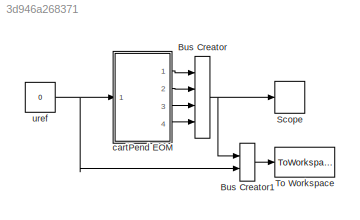
MODEL slx_3d946a268371
KIND model
CONFIG AbsTol = auto
CONFIG FixedStep = auto
CONFIG MaxStep = 0.01
CONFIG MinStep = auto
CONFIG RelTol = 1e-3
CONFIG SampleTimeConstraint = Unconstrained
CONFIG Solver = ode45
CONFIG SolverMode = Auto
CONFIG SolverName = ode45
CONFIG StartTime = 0.0
CONFIG StopTime = 10
BLOCK [BusCreator] Bus Creator
  DisplayOption = bar
  Ports = [4, 1]
BLOCK [BusCreator] Bus Creator1
  DisplayOption = bar
  Inputs = 2
  Ports = [2, 1]
BLOCK [TimeScope] Scope
  NumInputPorts = 1
  Ports = [1]
  ScopeSpecificationString = Simulink.scopes.TimeScopeBlockCfg('CurrentConfiguration', extmgr.ConfigurationSet(extmgr.Configuration('Core','General UI',true),extmgr.Configuration('Core','Source UI',true),extmgr.Configuration('Sources','WiredSimulink',true,'DataLoggingDecimation','1','DataLoggingDecimateData',true,'DataLoggingSaveFormat','StructureWithTime'),extmgr.Configuration('Visuals','Time Domain',true,'SerializedDisplays...<+1646ch>
BLOCK [ToWorkspace] To Workspace
  FixptAsFi = on
  MaxDataPoints = inf
  Ports = [1]
  SampleTime = -1
  Save2DSignal = 3-D array (concatenate along third dimension)
  SaveFormat = Structure With Time
  VariableName = simout
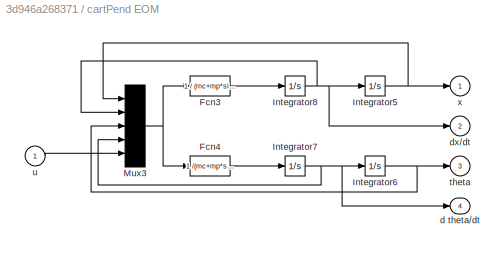
BLOCK [SubSystem] cartPend EOM
  Ports = [1, 4]
  RequestExecContextInheritance = off
BLOCK [Fcn] cartPend EOM/Fcn3
  Expr = 1 / (mc+mp*sin(u(3))^2)  * (   u(4)^2*mp*L*sin(u(3)) -u(4)*bT/L*cos(u(3))   -u(2)*bX  -   mp*g*sin(u(3))*cos(u(3)) + u(5) )
BLOCK [Fcn] cartPend EOM/Fcn4
  Expr = 1   /(mc+mp*sin(u(3))^2)  * (   u(2)*bX/L*cos(u(3))   -   u(4)^2*mp*sin(u(3))*cos(u(3))   - u(4)*bT*(mc+mp)/ (L^2*mp)       + (mc+mp)*g/L*sin(u(3)) - u(5)/L*cos(u(3)) )
BLOCK [Integrator] cartPend EOM/Integrator5
  ContinuousStateAttributes = 'x'
  InitialCondition = y0(1)
  Ports = [1, 1]
BLOCK [Integrator] cartPend EOM/Integrator6
  ContinuousStateAttributes = 'theta'
  InitialCondition = y0(3)
  Ports = [1, 1]
BLOCK [Integrator] cartPend EOM/Integrator7
  ContinuousStateAttributes = 'theta_dot'
  InitialCondition = y0(4)
  Ports = [1, 1]
BLOCK [Integrator] cartPend EOM/Integrator8
  ContinuousStateAttributes = 'xDot'
  InitialCondition = y0(2)
  Ports = [1, 1]
BLOCK [Mux] cartPend EOM/Mux3
  Inputs = 5
  Ports = [5, 1]
BLOCK [Outport] cartPend EOM/d theta//dt
  IconDisplay = Port number
  InitialOutput = 0
  Port = 4
BLOCK [Outport] cartPend EOM/dx//dt
  IconDisplay = Port number
  InitialOutput = 0
  Port = 2
BLOCK [Outport] cartPend EOM/theta 
  IconDisplay = Port number
  InitialOutput = 0
  Port = 3
BLOCK [Inport] cartPend EOM/u
  IconDisplay = Port number
BLOCK [Outport] cartPend EOM/x
  IconDisplay = Port number
  InitialOutput = 0
BLOCK [Constant] uref
  Value = 0
LINE Bus Creator1:1 -> To Workspace:1
NET Bus Creator:1 -> Bus Creator1:1, Scope:1
LINE cartPend EOM/Fcn3:1 -> cartPend EOM/Integrator8:1
LINE cartPend EOM/Fcn4:1 -> cartPend EOM/Integrator7:1
NET cartPend EOM/Integrator5:1 -> cartPend EOM/Mux3:1, cartPend EOM/x:1
NET cartPend EOM/Integrator6:1 -> cartPend EOM/Mux3:3, cartPend EOM/theta :1
NET cartPend EOM/Integrator7:1 -> cartPend EOM/Integrator6:1, cartPend EOM/Mux3:4, cartPend EOM/d theta//dt:1
NET cartPend EOM/Integrator8:1 -> cartPend EOM/Integrator5:1, cartPend EOM/Mux3:2, cartPend EOM/dx//dt:1
NET cartPend EOM/Mux3:1 -> cartPend EOM/Fcn3:1, cartPend EOM/Fcn4:1
LINE cartPend EOM/u:1 -> cartPend EOM/Mux3:5
LINE cartPend EOM:1 -> Bus Creator:1
LINE cartPend EOM:2 -> Bus Creator:2
LINE cartPend EOM:3 -> Bus Creator:3
LINE cartPend EOM:4 -> Bus Creator:4
NET uref:1 -> Bus Creator1:2, cartPend EOM:1
note: NET lines group one-source signal fan-out (src -> all destinations, sorted); 1:1 wires keep LINE
